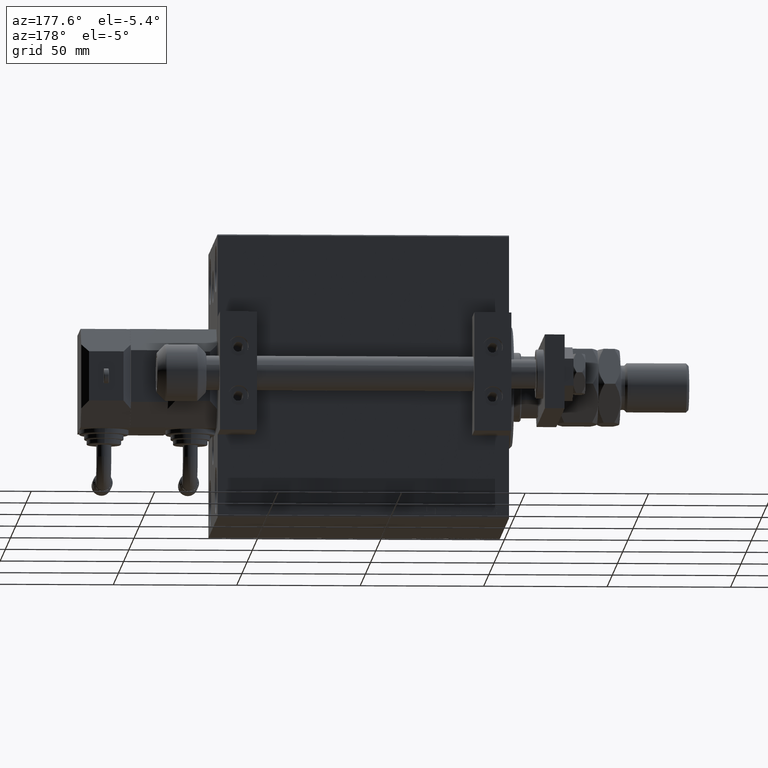
[diagram: clean part render]
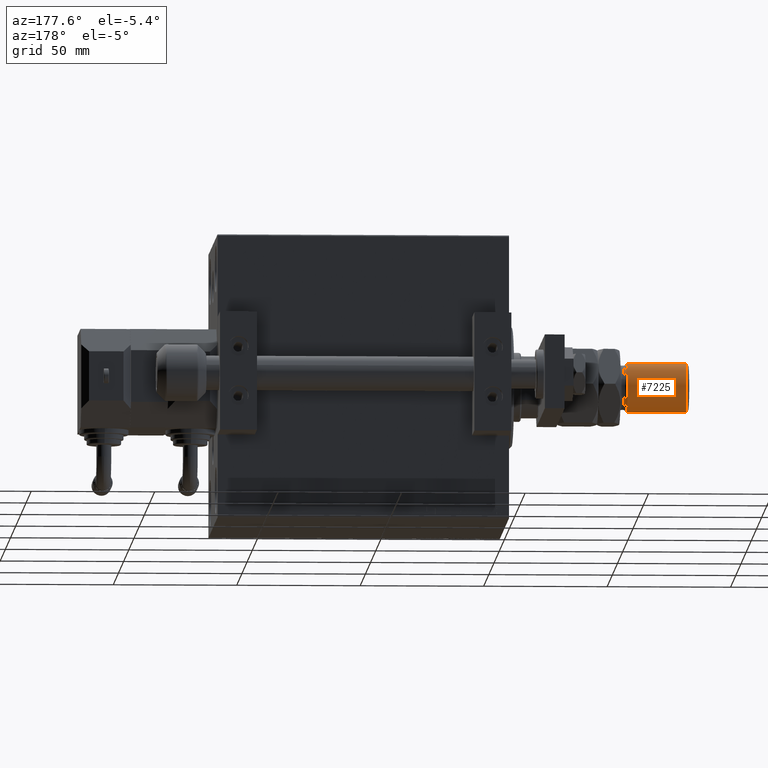
[diagram: same view with one face highlighted and labeled with its STEP entity id]
A machine part, auxiliary view. The second image highlights one B-rep face of the part: STEP entity #7225.
In plain terms, the highlighted cylindrical surface (edge-blend (fillet) strip) has radius 10 mm, axis along (1, -0, -0).
Its self-contained STEP definition (entity closure, byte-faithful):
#180 = DIRECTION ( 'NONE',  ( -0.000000000000000000, -0.000000000000000000, -1.000000000000000000 ) ) ;
#585 = VECTOR ( 'NONE', #38254, 1000.000000000000000 ) ;
#746 = CARTESIAN_POINT ( 'NONE',  ( 0.000000000000000000, 0.000000000000000000, 52.00000000000004974 ) ) ;
#1860 = ORIENTED_EDGE ( 'NONE', *, *, #32467, .T. ) ;
#2451 = CIRCLE ( 'NONE', #38981, 10.00000000000000000 ) ;
#3466 = CARTESIAN_POINT ( 'NONE',  ( 10.00000000000000000, 1.224646799147353059E-15, 28.00000000000002487 ) ) ;
#5791 = ORIENTED_EDGE ( 'NONE', *, *, #33899, .F. ) ;
#5810 = LINE ( 'NONE', #22021, #585 ) ;
#7225 = ADVANCED_FACE ( 'NONE', ( #7446 ), #10927, .T. ) ;
#7446 = FACE_OUTER_BOUND ( 'NONE', #51093, .T. ) ;
#10476 = VERTEX_POINT ( 'NONE', #3466 ) ;
#10927 = CYLINDRICAL_SURFACE ( 'NONE', #29862, 10.00000000000000000 ) ;
#12686 = LINE ( 'NONE', #36630, #41442 ) ;
#15513 = VERTEX_POINT ( 'NONE', #50279 ) ;
#22021 = CARTESIAN_POINT ( 'NONE',  ( 10.00000000000000000, 1.224646799147353059E-15, 53.00000000000000711 ) ) ;
#22499 = DIRECTION ( 'NONE',  ( -0.000000000000000000, -0.000000000000000000, 1.000000000000000000 ) ) ;
#22691 = VERTEX_POINT ( 'NONE', #31314 ) ;
#23682 = VERTEX_POINT ( 'NONE', #37475 ) ;
#24159 = ORIENTED_EDGE ( 'NONE', *, *, #36554, .T. ) ;
#26231 = DIRECTION ( 'NONE',  ( 1.000000000000000000, 0.000000000000000000, 0.000000000000000000 ) ) ;
#29862 = AXIS2_PLACEMENT_3D ( 'NONE', #31650, #47881, #39898 ) ;
#31314 = CARTESIAN_POINT ( 'NONE',  ( -10.00000000000000000, 0.000000000000000000, 28.00000000000002487 ) ) ;
#31650 = CARTESIAN_POINT ( 'NONE',  ( 0.000000000000000000, 0.000000000000000000, 53.00000000000000711 ) ) ;
#32467 = EDGE_CURVE ( 'NONE', #23682, #10476, #5810, .T. ) ;
#33899 = EDGE_CURVE ( 'NONE', #15513, #22691, #12686, .T. ) ;
#36554 = EDGE_CURVE ( 'NONE', #10476, #22691, #2451, .T. ) ;
#36630 = CARTESIAN_POINT ( 'NONE',  ( -10.00000000000000000, 0.000000000000000000, 53.00000000000000711 ) ) ;
#36931 = DIRECTION ( 'NONE',  ( 1.000000000000000000, 0.000000000000000000, 0.000000000000000000 ) ) ;
#37475 = CARTESIAN_POINT ( 'NONE',  ( 10.00000000000000000, 1.224646799147353059E-15, 52.00000000000004974 ) ) ;
#37794 = ORIENTED_EDGE ( 'NONE', *, *, #43436, .T. ) ;
#38254 = DIRECTION ( 'NONE',  ( -0.000000000000000000, -0.000000000000000000, -1.000000000000000000 ) ) ;
#38463 = CARTESIAN_POINT ( 'NONE',  ( 0.000000000000000000, 0.000000000000000000, 28.00000000000002487 ) ) ;
#38981 = AXIS2_PLACEMENT_3D ( 'NONE', #38463, #22499, #26231 ) ;
#39898 = DIRECTION ( 'NONE',  ( -1.000000000000000000, 0.000000000000000000, 0.000000000000000000 ) ) ;
#41442 = VECTOR ( 'NONE', #180, 1000.000000000000000 ) ;
#43436 = EDGE_CURVE ( 'NONE', #15513, #23682, #50291, .T. ) ;
#45175 = DIRECTION ( 'NONE',  ( 0.000000000000000000, 0.000000000000000000, -1.000000000000000000 ) ) ;
#47881 = DIRECTION ( 'NONE',  ( -0.000000000000000000, -0.000000000000000000, -1.000000000000000000 ) ) ;
#50279 = CARTESIAN_POINT ( 'NONE',  ( -10.00000000000000000, 0.000000000000000000, 52.00000000000004974 ) ) ;
#50291 = CIRCLE ( 'NONE', #51129, 10.00000000000000000 ) ;
#51093 = EDGE_LOOP ( 'NONE', ( #37794, #1860, #24159, #5791 ) ) ;
#51129 = AXIS2_PLACEMENT_3D ( 'NONE', #746, #45175, #36931 ) ;